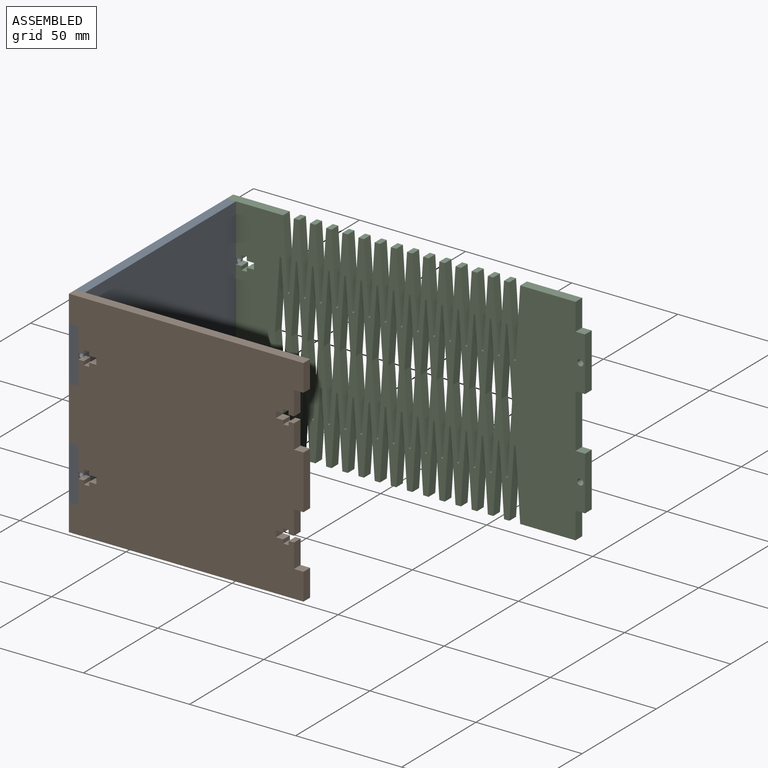
[diagram: assembled view]
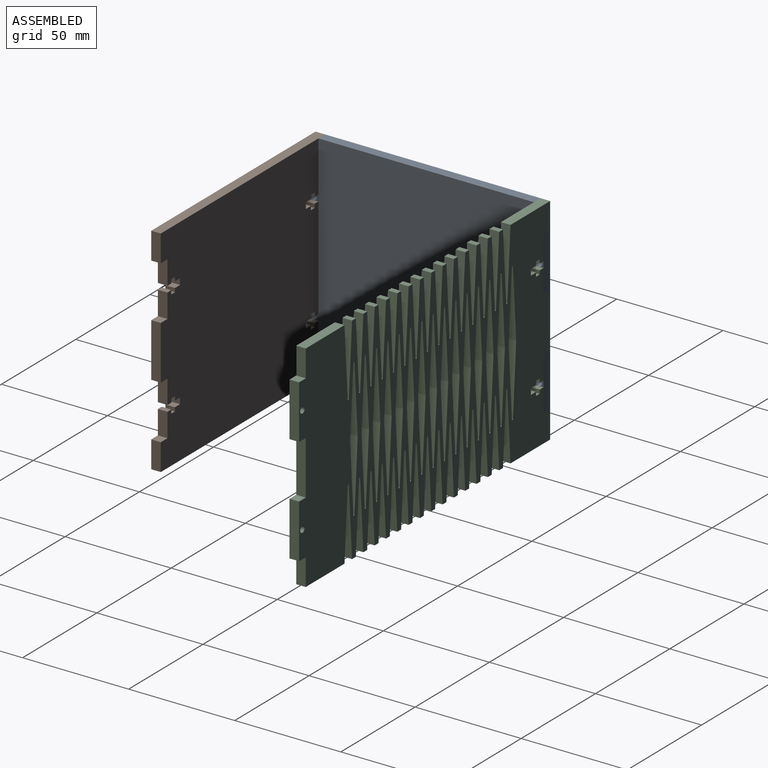
[diagram: assembled view, second angle]
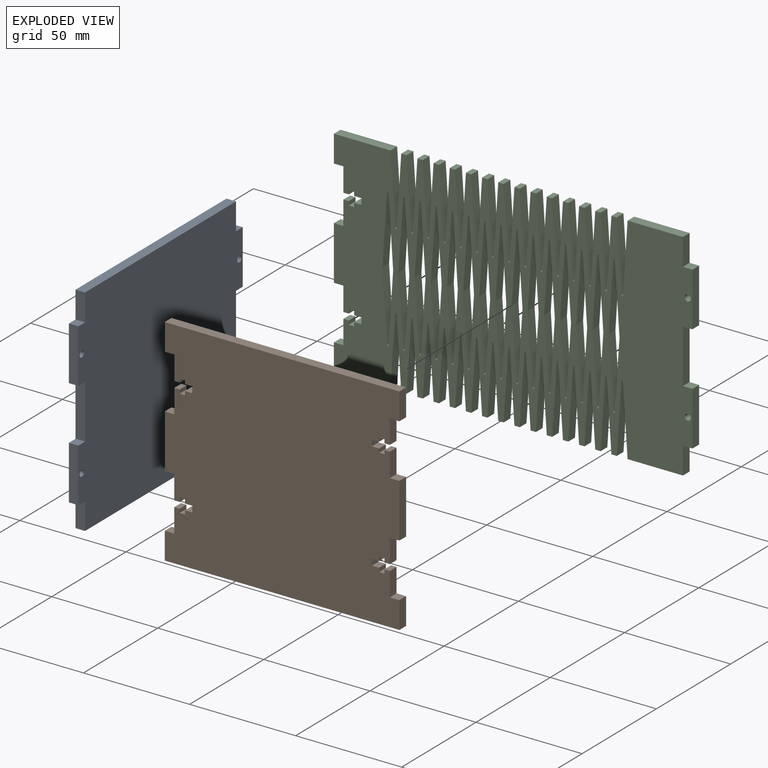
[diagram: exploded view]
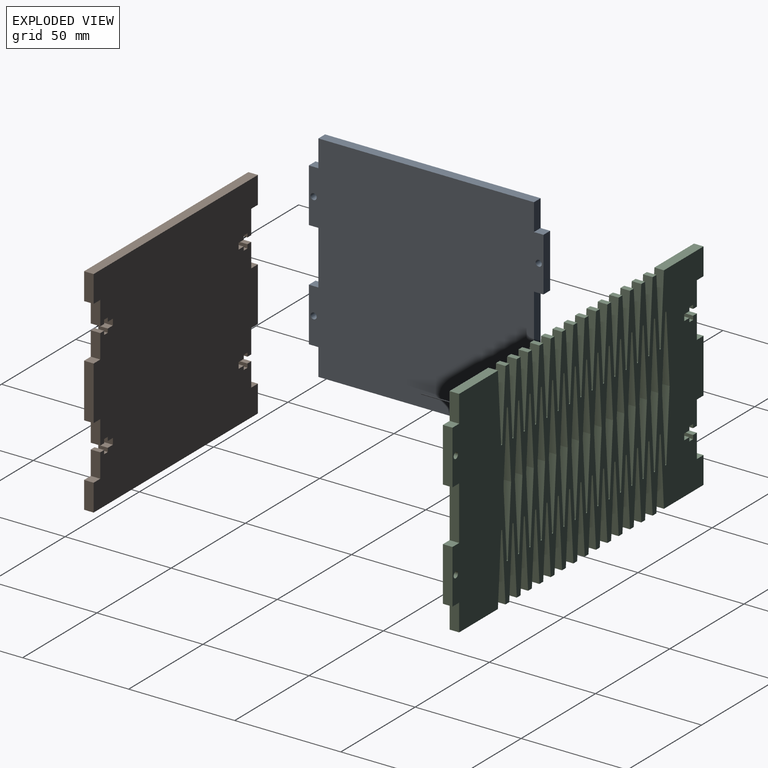
[diagram: exploded view, second angle]
ASSEMBLY  parts=3 mates=7
PART A: 26 faces, bbox 110.6x101.6x4.5 mm
  f0: plane 25.4x4.5mm, normal (-1,0,0), area 114.2mm2, adj f1,f22,f24,f25
  f1: plane 4.5x4.5mm, normal (0,1,0), area 20.2mm2, adj f0,f2,f24,f25
  f2: plane 25.4x4.5mm, normal (-1,0,0), area 114.2mm2, adj f1,f3,f24,f25
  f3: plane 4.5x4.5mm, normal (0,-1,0), area 20.2mm2, adj f2,f4,f24,f25
  f4: plane 12.7x4.5mm, normal (-1,0,0), area 57.1mm2, adj f3,f5,f24,f25
  f5: plane 101.6x4.5mm, normal (0,-1,0), area 456.8mm2, adj f4,f6,f24,f25
  f6: plane 12.7x4.5mm, normal (1,0,0), area 57.1mm2, adj f5,f7,f24,f25
  f7: plane 4.5x4.5mm, normal (0,-1,0), area 20.2mm2, adj f6,f8,f24,f25
  f8: plane 25.4x4.5mm, normal (1,0,0), area 114.2mm2, adj f7,f9,f24,f25
  f9: plane 4.5x4.5mm, normal (0,1,0), area 20.2mm2, adj f8,f10,f24,f25
  f10: plane 25.4x4.5mm, normal (1,0,0), area 114.2mm2, adj f9,f11,f24,f25
  f11: plane 4.5x4.5mm, normal (0,-1,0), area 20.2mm2, adj f10,f12,f24,f25
  f12: plane 25.4x4.5mm, normal (1,0,0), area 114.2mm2, adj f11,f13,f24,f25
  f13: plane 4.5x4.5mm, normal (0,1,0), area 20.2mm2, adj f12,f14,f24,f25
  f14: plane 12.7x4.5mm, normal (1,0,0), area 57.1mm2, adj f13,f15,f24,f25
  f15: plane 101.6x4.5mm, normal (0,1,0), area 456.8mm2, adj f14,f16,f24,f25
  f16: plane 12.7x4.5mm, normal (-1,0,0), area 57.1mm2, adj f15,f17,f24,f25
  f17: plane 4.5x4.5mm, normal (0,1,0), area 20.2mm2, adj f16,f18,f24,f25
  f18: plane 25.4x4.5mm, normal (-1,0,0), area 114.2mm2, adj f17,f22,f24,f25
  f19: cylinder r=1.45mm len=4.5mm, axis (0,0,-1), area 40.9mm2, adj f24,f25
  f20: cylinder r=1.45mm len=4.5mm, axis (0,0,-1), area 40.9mm2, adj f24,f25
  f21: cylinder r=1.45mm len=4.5mm, axis (0,0,-1), area 40.9mm2, adj f24,f25
  f22: plane 4.5x4.5mm, normal (0,-1,0), area 20.2mm2, adj f0,f18,f24,f25
  f23: cylinder r=1.45mm len=4.5mm, axis (0,0,-1), area 40.9mm2, adj f24,f25
  f24: plane 110.59x101.6mm, normal (0,0,1), area 10753mm2, adj f0,f1,f2,f3,f4,f5,f6,f7
  f25: plane 110.59x101.6mm, normal (0,0,-1), area 10753mm2, adj f0,f1,f2,f3,f4,f5,f6,f7
PART B: 70 faces, bbox 110.6x101.6x4.5 mm
  f0: plane 4.5x4.5mm, normal (0,-1,0), area 20.2mm2, adj f1,f67,f68,f69
  f1: plane 11.25x4.5mm, normal (-1,0,0), area 50.6mm2, adj f0,f2,f68,f69
  f2: plane 4.5x2.54mm, normal (0,-1,0), area 11.4mm2, adj f1,f3,f68,f69
  f3: plane 4.5x1.79mm, normal (1,0,0), area 8.1mm2, adj f2,f4,f68,f69
  f4: plane 4.5x2.51mm, normal (0,-1,0), area 11.3mm2, adj f3,f5,f68,f69
  f5: plane 4.5x1.79mm, normal (-1,0,0), area 8.1mm2, adj f4,f6,f68,f69
  f6: plane 4.5x3.41mm, normal (0,-1,0), area 15.3mm2, adj f5,f7,f68,f69
  f7: plane 4.5x2.9mm, normal (-1,0,0), area 13mm2, adj f6,f8,f68,f69
  f8: plane 4.5x3.41mm, normal (0,1,0), area 15.3mm2, adj f7,f9,f68,f69
  f9: plane 4.5x1.79mm, normal (-1,0,0), area 8.1mm2, adj f8,f10,f68,f69
  f10: plane 4.5x2.51mm, normal (0,1,0), area 11.3mm2, adj f9,f11,f68,f69
  f11: plane 4.5x1.79mm, normal (1,0,0), area 8.1mm2, adj f10,f12,f68,f69
  f12: plane 4.5x2.54mm, normal (0,1,0), area 11.4mm2, adj f11,f13,f68,f69
  f13: plane 11.25x4.5mm, normal (-1,0,0), area 50.6mm2, adj f12,f14,f68,f69
  f14: plane 4.5x4.5mm, normal (0,1,0), area 20.2mm2, adj f13,f15,f68,f69
  f15: plane 25.4x4.5mm, normal (-1,0,0), area 114.2mm2, adj f14,f16,f68,f69
  f16: plane 4.5x4.5mm, normal (0,-1,0), area 20.2mm2, adj f15,f17,f68,f69
  f17: plane 11.25x4.5mm, normal (-1,0,0), area 50.6mm2, adj f16,f18,f68,f69
  f18: plane 4.5x2.54mm, normal (0,-1,0), area 11.4mm2, adj f17,f19,f68,f69
  f19: plane 4.5x1.79mm, normal (1,0,0), area 8.1mm2, adj f18,f20,f68,f69
  f20: plane 4.5x2.51mm, normal (0,-1,0), area 11.3mm2, adj f19,f21,f68,f69
  f21: plane 4.5x1.79mm, normal (-1,0,0), area 8.1mm2, adj f20,f22,f68,f69
  f22: plane 4.5x3.41mm, normal (0,-1,0), area 15.3mm2, adj f21,f23,f68,f69
  f23: plane 4.5x2.9mm, normal (-1,0,0), area 13mm2, adj f22,f24,f68,f69
  f24: plane 4.5x3.41mm, normal (0,1,0), area 15.3mm2, adj f23,f25,f68,f69
  f25: plane 4.5x1.79mm, normal (-1,0,0), area 8.1mm2, adj f24,f26,f68,f69
  f26: plane 4.5x2.51mm, normal (0,1,0), area 11.3mm2, adj f25,f27,f68,f69
  f27: plane 4.5x1.79mm, normal (1,0,0), area 8.1mm2, adj f26,f28,f68,f69
  f28: plane 4.5x2.54mm, normal (0,1,0), area 11.4mm2, adj f27,f29,f68,f69
  f29: plane 11.25x4.5mm, normal (-1,0,0), area 50.6mm2, adj f28,f30,f68,f69
  f30: plane 4.5x4.5mm, normal (0,1,0), area 20.2mm2, adj f29,f31,f68,f69
  f31: plane 12.7x4.5mm, normal (-1,0,0), area 57.1mm2, adj f30,f32,f68,f69
  f32: plane 110.59x4.5mm, normal (0,-1,0), area 497.2mm2, adj f31,f33,f68,f69
  f33: plane 12.7x4.5mm, normal (1,0,0), area 57.1mm2, adj f32,f34,f68,f69
  f34: plane 4.5x4.5mm, normal (0,1,0), area 20.2mm2, adj f33,f35,f68,f69
  f35: plane 11.25x4.5mm, normal (1,0,0), area 50.6mm2, adj f34,f36,f68,f69
  f36: plane 4.5x2.54mm, normal (0,1,0), area 11.4mm2, adj f35,f37,f68,f69
  f37: plane 4.5x1.79mm, normal (-1,0,0), area 8.1mm2, adj f36,f38,f68,f69
  f38: plane 4.5x2.51mm, normal (0,1,0), area 11.3mm2, adj f37,f39,f68,f69
  f39: plane 4.5x1.79mm, normal (1,0,0), area 8.1mm2, adj f38,f40,f68,f69
  f40: plane 4.5x3.41mm, normal (0,1,0), area 15.3mm2, adj f39,f41,f68,f69
  f41: plane 4.5x2.9mm, normal (1,0,0), area 13mm2, adj f40,f42,f68,f69
  f42: plane 4.5x3.41mm, normal (0,-1,0), area 15.3mm2, adj f41,f43,f68,f69
  f43: plane 4.5x1.79mm, normal (1,0,0), area 8.1mm2, adj f42,f44,f68,f69
  f44: plane 4.5x2.51mm, normal (0,-1,0), area 11.3mm2, adj f43,f45,f68,f69
  f45: plane 4.5x1.79mm, normal (-1,0,0), area 8.1mm2, adj f44,f46,f68,f69
  f46: plane 4.5x2.54mm, normal (0,-1,0), area 11.4mm2, adj f45,f47,f68,f69
  f47: plane 11.25x4.5mm, normal (1,0,0), area 50.6mm2, adj f46,f48,f68,f69
  f48: plane 4.5x4.5mm, normal (0,-1,0), area 20.2mm2, adj f47,f49,f68,f69
  f49: plane 25.4x4.5mm, normal (1,0,0), area 114.2mm2, adj f48,f50,f68,f69
  f50: plane 4.5x4.5mm, normal (0,1,0), area 20.2mm2, adj f49,f51,f68,f69
  f51: plane 11.25x4.5mm, normal (1,0,0), area 50.6mm2, adj f50,f52,f68,f69
  f52: plane 4.5x2.54mm, normal (0,1,0), area 11.4mm2, adj f51,f53,f68,f69
  f53: plane 4.5x1.79mm, normal (-1,0,0), area 8.1mm2, adj f52,f54,f68,f69
  f54: plane 4.5x2.51mm, normal (0,1,0), area 11.3mm2, adj f53,f55,f68,f69
  f55: plane 4.5x1.79mm, normal (1,0,0), area 8.1mm2, adj f54,f56,f68,f69
  f56: plane 4.5x3.41mm, normal (0,1,0), area 15.3mm2, adj f55,f57,f68,f69
  f57: plane 4.5x2.9mm, normal (1,0,0), area 13mm2, adj f56,f58,f68,f69
  f58: plane 4.5x3.41mm, normal (0,-1,0), area 15.3mm2, adj f57,f59,f68,f69
  f59: plane 4.5x1.79mm, normal (1,0,0), area 8.1mm2, adj f58,f60,f68,f69
  f60: plane 4.5x2.51mm, normal (0,-1,0), area 11.3mm2, adj f59,f61,f68,f69
  f61: plane 4.5x1.79mm, normal (-1,0,0), area 8.1mm2, adj f60,f62,f68,f69
  f62: plane 4.5x2.54mm, normal (0,-1,0), area 11.4mm2, adj f61,f63,f68,f69
  f63: plane 11.25x4.5mm, normal (1,0,0), area 50.6mm2, adj f62,f64,f68,f69
  f64: plane 4.5x4.5mm, normal (0,-1,0), area 20.2mm2, adj f63,f65,f68,f69
  f65: plane 12.7x4.5mm, normal (1,0,0), area 57.1mm2, adj f64,f66,f68,f69
  f66: plane 110.59x4.5mm, normal (0,1,0), area 497.2mm2, adj f65,f67,f68,f69
  f67: plane 12.7x4.5mm, normal (-1,0,0), area 57.1mm2, adj f0,f66,f68,f69
  f68: plane 110.59x101.6mm, normal (0,0,1), area 10645.4mm2, adj f0,f1,f2,f3,f4,f5,f6,f7
  f69: plane 110.59x101.6mm, normal (0,0,-1), area 10645.4mm2, adj f0,f1,f2,f3,f4,f5,f6,f7
PART C: 258 faces, bbox 169x101.6x4.5 mm
  f0: plane 4.5x2.54mm, normal (0,-1,0), area 11.4mm2, adj f30,f31,f226,f240
  f1: plane 4.5x2.54mm, normal (0,-1,0), area 11.4mm2, adj f30,f31,f160,f231
  f2: plane 4.5x2.54mm, normal (0,-1,0), area 11.4mm2, adj f30,f31,f225,f232
  f3: plane 4.5x2.54mm, normal (0,-1,0), area 11.4mm2, adj f30,f31,f205,f216
  f4: plane 4.5x2.54mm, normal (0,-1,0), area 11.4mm2, adj f30,f31,f210,f217
  f5: plane 4.5x2.54mm, normal (0,-1,0), area 11.4mm2, adj f30,f31,f204,f241
  f6: plane 4.5x2.54mm, normal (0,-1,0), area 11.4mm2, adj f30,f31,f174,f186
  f7: plane 4.5x2.54mm, normal (0,-1,0), area 11.4mm2, adj f30,f31,f180,f187
  f8: plane 26.67x4.5mm, normal (0,-1,0), area 119.9mm2, adj f30,f31,f54,f176
  f9: plane 4.5x2.54mm, normal (0,-1,0), area 11.4mm2, adj f30,f31,f133,f159
  f10: plane 4.5x2.54mm, normal (0,-1,0), area 11.4mm2, adj f30,f31,f132,f181
  f11: plane 4.5x2.54mm, normal (0,-1,0), area 11.4mm2, adj f30,f31,f88,f123
  f12: plane 4.5x2.54mm, normal (0,-1,0), area 11.4mm2, adj f30,f31,f117,f124
  f13: plane 4.5x2.54mm, normal (0,-1,0), area 11.4mm2, adj f30,f31,f114,f211
  f14: plane 4.5x2.54mm, normal (0,-1,0), area 11.4mm2, adj f30,f31,f87,f115
  f15: plane 4.5x2.54mm, normal (0,1,0), area 11.4mm2, adj f30,f31,f209,f256
  f16: plane 4.5x2.54mm, normal (0,1,0), area 11.4mm2, adj f30,f31,f229,f257
  f17: plane 4.5x2.54mm, normal (0,1,0), area 11.4mm2, adj f30,f31,f101,f214
  f18: plane 4.5x2.54mm, normal (0,1,0), area 11.4mm2, adj f30,f31,f203,f208
  f19: plane 4.5x2.54mm, normal (0,1,0), area 11.4mm2, adj f30,f31,f202,f215
  f20: plane 4.5x2.54mm, normal (0,1,0), area 11.4mm2, adj f30,f31,f149,f184
  f21: plane 4.5x2.54mm, normal (0,1,0), area 11.4mm2, adj f30,f31,f173,f178
  f22: plane 4.5x2.54mm, normal (0,1,0), area 11.4mm2, adj f30,f31,f172,f185
  f23: plane 4.5x2.54mm, normal (0,1,0), area 11.4mm2, adj f30,f31,f158,f163
  f24: plane 4.5x2.54mm, normal (0,1,0), area 11.4mm2, adj f30,f31,f157,f230
  f25: plane 4.5x2.54mm, normal (0,1,0), area 11.4mm2, adj f30,f31,f148,f164
  f26: plane 26.09x4.5mm, normal (0,1,0), area 117.3mm2, adj f30,f31,f64,f121
  f27: plane 4.5x2.54mm, normal (0,1,0), area 11.4mm2, adj f30,f31,f86,f100
  f28: plane 4.5x2.54mm, normal (0,1,0), area 11.4mm2, adj f30,f31,f91,f122
  f29: plane 4.5x2.54mm, normal (0,1,0), area 11.4mm2, adj f30,f31,f85,f92
  f30: plane 169.01x101.6mm, normal (0,0,1), area 10945.8mm2, adj f0,f1,f2,f3,f4,f5,f6,f7
  f31: plane 169.01x101.6mm, normal (0,0,-1), area 10945.8mm2, adj f0,f1,f2,f3,f4,f5,f6,f7
  f32: plane 4.5x1.79mm, normal (-1,0,0), area 8.1mm2, adj f30,f31,f33,f77
  f33: plane 4.5x2.51mm, normal (0,1,0), area 11.3mm2, adj f30,f31,f32,f34
  f34: plane 4.5x1.79mm, normal (1,0,0), area 8.1mm2, adj f30,f31,f33,f35
  f35: plane 4.5x2.54mm, normal (0,1,0), area 11.4mm2, adj f30,f31,f34,f36
  f36: plane 11.25x4.5mm, normal (-1,0,0), area 50.6mm2, adj f30,f31,f35,f37
  f37: plane 4.5x4.5mm, normal (0,1,0), area 20.2mm2, adj f30,f31,f36,f38
  f38: plane 25.4x4.5mm, normal (-1,0,0), area 114.2mm2, adj f30,f31,f37,f39
  f39: plane 4.5x4.5mm, normal (0,-1,0), area 20.2mm2, adj f30,f31,f38,f40
  f40: plane 11.25x4.5mm, normal (-1,0,0), area 50.6mm2, adj f30,f31,f39,f41
  f41: plane 4.5x2.54mm, normal (0,-1,0), area 11.4mm2, adj f30,f31,f40,f42
  f42: plane 4.5x1.79mm, normal (1,0,0), area 8.1mm2, adj f30,f31,f41,f43
  f43: plane 4.5x2.51mm, normal (0,-1,0), area 11.3mm2, adj f30,f31,f42,f44
  f44: plane 4.5x1.79mm, normal (-1,0,0), area 8.1mm2, adj f30,f31,f43,f45
  f45: plane 4.5x3.41mm, normal (0,-1,0), area 15.3mm2, adj f30,f31,f44,f46
  f46: plane 4.5x2.9mm, normal (-1,0,0), area 13mm2, adj f30,f31,f45,f47
  f47: plane 4.5x3.41mm, normal (0,1,0), area 15.3mm2, adj f30,f31,f46,f48
  f48: plane 4.5x1.79mm, normal (-1,0,0), area 8.1mm2, adj f30,f31,f47,f49
  f49: plane 4.5x2.51mm, normal (0,1,0), area 11.3mm2, adj f30,f31,f48,f50
  f50: plane 4.5x1.79mm, normal (1,0,0), area 8.1mm2, adj f30,f31,f49,f51
  f51: plane 4.5x2.54mm, normal (0,1,0), area 11.4mm2, adj f30,f31,f50,f52
  f52: plane 11.25x4.5mm, normal (-1,0,0), area 50.6mm2, adj f30,f31,f51,f53
  f53: plane 4.5x4.5mm, normal (0,1,0), area 20.2mm2, adj f30,f31,f52,f54
  f54: plane 12.7x4.5mm, normal (-1,0,0), area 57.1mm2, adj f8,f30,f31,f53
  f55: plane 26.09x4.5mm, normal (0,-1,0), area 117.3mm2, adj f30,f31,f56,f118
  f56: plane 12.7x4.5mm, normal (1,0,0), area 57.1mm2, adj f30,f31,f55,f57
  f57: plane 4.5x4.5mm, normal (0,-1,0), area 20.2mm2, adj f30,f31,f56,f58
  f58: plane 25.4x4.5mm, normal (1,0,0), area 114.2mm2, adj f30,f31,f57,f59
  f59: plane 4.5x4.5mm, normal (0,1,0), area 20.2mm2, adj f30,f31,f58,f60
  f60: plane 25.4x4.5mm, normal (1,0,0), area 114.2mm2, adj f30,f31,f59,f61
  f61: plane 4.5x4.5mm, normal (0,-1,0), area 20.2mm2, adj f30,f31,f60,f62
  f62: plane 25.4x4.5mm, normal (1,0,0), area 114.2mm2, adj f30,f31,f61,f63
  f63: plane 4.5x4.5mm, normal (0,1,0), area 20.2mm2, adj f30,f31,f62,f64
  f64: plane 12.7x4.5mm, normal (1,0,0), area 57.1mm2, adj f26,f30,f31,f63
  f65: plane 26.67x4.5mm, normal (0,1,0), area 119.9mm2, adj f30,f31,f66,f179
  f66: plane 12.7x4.5mm, normal (-1,0,0), area 57.1mm2, adj f30,f31,f65,f67
  f67: plane 4.5x4.5mm, normal (0,-1,0), area 20.2mm2, adj f30,f31,f66,f68
  f68: plane 11.25x4.5mm, normal (-1,0,0), area 50.6mm2, adj f30,f31,f67,f69
  f69: plane 4.5x2.54mm, normal (0,-1,0), area 11.4mm2, adj f30,f31,f68,f70
  f70: plane 4.5x1.79mm, normal (1,0,0), area 8.1mm2, adj f30,f31,f69,f71
  f71: plane 4.5x2.51mm, normal (0,-1,0), area 11.3mm2, adj f30,f31,f70,f72
  f72: plane 4.5x1.79mm, normal (-1,0,0), area 8.1mm2, adj f30,f31,f71,f73
  f73: plane 4.5x3.41mm, normal (0,-1,0), area 15.3mm2, adj f30,f31,f72,f74
  f74: plane 4.5x2.9mm, normal (-1,0,0), area 13mm2, adj f30,f31,f73,f77
  f75: cylinder r=1.45mm len=4.5mm, axis (0,0,-1), area 40.9mm2, adj f30,f31
  f76: cylinder r=1.45mm len=4.5mm, axis (0,0,-1), area 40.9mm2, adj f30,f31
  f77: plane 4.5x3.41mm, normal (0,1,0), area 15.3mm2, adj f30,f31,f32,f74
  f78: plane 32.4x4.5mm, normal (-1,0.07,0), area 146mm2, adj f30,f31,f79,f83
  f79: plane 32.4x4.5mm, normal (-1,-0.07,0), area 146mm2, adj f30,f31,f78,f80
  f80: cylinder r=0.38mm len=4.5mm, axis (0,0,1), area 5.2mm2, adj f30,f31,f79,f81
  f81: plane 32.4x4.5mm, normal (1,-0.07,0), area 146mm2, adj f30,f31,f80,f82
  f82: plane 32.4x4.5mm, normal (1,0.07,0), area 146mm2, adj f30,f31,f81,f83
  f83: cylinder r=0.38mm len=4.5mm, axis (0,0,1), area 5.2mm2, adj f30,f31,f78,f82
  f84: cylinder r=0.38mm len=4.5mm, axis (0,0,1), area 5.2mm2, adj f30,f31,f85,f86
  f85: plane 32.4x4.5mm, normal (-1,0.07,0), area 146mm2, adj f29,f30,f31,f84
  f86: plane 32.4x4.5mm, normal (1,0.07,0), area 146mm2, adj f27,f30,f31,f84
  f87: plane 32.4x4.5mm, normal (1,-0.07,0), area 146mm2, adj f14,f30,f31,f89
  f88: plane 32.4x4.5mm, normal (-1,-0.07,0), area 146mm2, adj f11,f30,f31,f89
  f89: cylinder r=0.38mm len=4.5mm, axis (0,0,1), area 5.2mm2, adj f30,f31,f87,f88
  f90: cylinder r=0.38mm len=4.5mm, axis (0,0,1), area 5.2mm2, adj f30,f31,f91,f92
  f91: plane 32.4x4.5mm, normal (-1,0.07,0), area 146mm2, adj f28,f30,f31,f90
  f92: plane 32.4x4.5mm, normal (1,0.07,0), area 146mm2, adj f29,f30,f31,f90
  f93: plane 32.4x4.5mm, normal (-1,0.07,0), area 146mm2, adj f30,f31,f94,f98
  f94: plane 32.4x4.5mm, normal (-1,-0.07,0), area 146mm2, adj f30,f31,f93,f95
  f95: cylinder r=0.38mm len=4.5mm, axis (0,0,1), area 5.2mm2, adj f30,f31,f94,f96
  f96: plane 32.4x4.5mm, normal (1,-0.07,0), area 146mm2, adj f30,f31,f95,f97
  f97: plane 32.4x4.5mm, normal (1,0.07,0), area 146mm2, adj f30,f31,f96,f98
  f98: cylinder r=0.38mm len=4.5mm, axis (0,0,1), area 5.2mm2, adj f30,f31,f93,f97
  f99: cylinder r=0.38mm len=4.5mm, axis (0,0,1), area 5.2mm2, adj f30,f31,f100,f101
  f100: plane 32.4x4.5mm, normal (-1,0.07,0), area 146mm2, adj f27,f30,f31,f99
  f101: plane 32.4x4.5mm, normal (1,0.07,0), area 146mm2, adj f17,f30,f31,f99
  f102: plane 32.4x4.5mm, normal (-1,0.07,0), area 146mm2, adj f30,f31,f103,f107
  f103: plane 32.4x4.5mm, normal (-1,-0.07,0), area 146mm2, adj f30,f31,f102,f104
  f104: cylinder r=0.38mm len=4.5mm, axis (0,0,1), area 5.2mm2, adj f30,f31,f103,f105
  f105: plane 32.4x4.5mm, normal (1,-0.07,0), area 146mm2, adj f30,f31,f104,f106
  f106: plane 32.4x4.5mm, normal (1,0.07,0), area 146mm2, adj f30,f31,f105,f107
  f107: cylinder r=0.38mm len=4.5mm, axis (0,0,1), area 5.2mm2, adj f30,f31,f102,f106
  f108: plane 32.4x4.5mm, normal (-1,0.07,0), area 146mm2, adj f30,f31,f109,f113
  f109: plane 32.4x4.5mm, normal (-1,-0.07,0), area 146mm2, adj f30,f31,f108,f110
  f110: cylinder r=0.38mm len=4.5mm, axis (0,0,1), area 5.2mm2, adj f30,f31,f109,f111
  f111: plane 32.4x4.5mm, normal (1,-0.07,0), area 146mm2, adj f30,f31,f110,f112
  f112: plane 32.4x4.5mm, normal (1,0.07,0), area 146mm2, adj f30,f31,f111,f113
  f113: cylinder r=0.38mm len=4.5mm, axis (0,0,1), area 5.2mm2, adj f30,f31,f108,f112
  f114: plane 32.4x4.5mm, normal (1,-0.07,0), area 146mm2, adj f13,f30,f31,f116
  f115: plane 32.4x4.5mm, normal (-1,-0.07,0), area 146mm2, adj f14,f30,f31,f116
  f116: cylinder r=0.38mm len=4.5mm, axis (0,0,1), area 5.2mm2, adj f30,f31,f114,f115
  f117: plane 32.4x4.5mm, normal (1,-0.07,0), area 146mm2, adj f12,f30,f31,f119
  f118: plane 32.4x4.5mm, normal (-1,-0.07,0), area 146mm2, adj f30,f31,f55,f119
  f119: cylinder r=0.38mm len=4.5mm, axis (0,0,1), area 5.2mm2, adj f30,f31,f117,f118
  f120: cylinder r=0.38mm len=4.5mm, axis (0,0,1), area 5.2mm2, adj f30,f31,f121,f122
  f121: plane 32.4x4.5mm, normal (-1,0.07,0), area 146mm2, adj f26,f30,f31,f120
  f122: plane 32.4x4.5mm, normal (1,0.07,0), area 146mm2, adj f28,f30,f31,f120
  f123: plane 32.4x4.5mm, normal (1,-0.07,0), area 146mm2, adj f11,f30,f31,f125
  f124: plane 32.4x4.5mm, normal (-1,-0.07,0), area 146mm2, adj f12,f30,f31,f125
  f125: cylinder r=0.38mm len=4.5mm, axis (0,0,1), area 5.2mm2, adj f30,f31,f123,f124
  f126: plane 32.4x4.5mm, normal (-1,0.07,0), area 146mm2, adj f30,f31,f127,f131
  f127: plane 32.4x4.5mm, normal (-1,-0.07,0), area 146mm2, adj f30,f31,f126,f128
  f128: cylinder r=0.38mm len=4.5mm, axis (0,0,1), area 5.2mm2, adj f30,f31,f127,f129
  f129: plane 32.4x4.5mm, normal (1,-0.07,0), area 146mm2, adj f30,f31,f128,f130
  f130: plane 32.4x4.5mm, normal (1,0.07,0), area 146mm2, adj f30,f31,f129,f131
  f131: cylinder r=0.38mm len=4.5mm, axis (0,0,1), area 5.2mm2, adj f30,f31,f126,f130
  f132: plane 32.4x4.5mm, normal (1,-0.07,0), area 146mm2, adj f10,f30,f31,f134
  f133: plane 32.4x4.5mm, normal (-1,-0.07,0), area 146mm2, adj f9,f30,f31,f134
  f134: cylinder r=0.38mm len=4.5mm, axis (0,0,1), area 5.2mm2, adj f30,f31,f132,f133
  f135: plane 32.4x4.5mm, normal (-1,0.07,0), area 146mm2, adj f30,f31,f136,f140
  f136: plane 32.4x4.5mm, normal (-1,-0.07,0), area 146mm2, adj f30,f31,f135,f137
  f137: cylinder r=0.38mm len=4.5mm, axis (0,0,1), area 5.2mm2, adj f30,f31,f136,f138
  f138: plane 32.4x4.5mm, normal (1,-0.07,0), area 146mm2, adj f30,f31,f137,f139
  f139: plane 32.4x4.5mm, normal (1,0.07,0), area 146mm2, adj f30,f31,f138,f140
  f140: cylinder r=0.38mm len=4.5mm, axis (0,0,1), area 5.2mm2, adj f30,f31,f135,f139
  f141: plane 32.4x4.5mm, normal (-1,0.07,0), area 146mm2, adj f30,f31,f142,f146
  f142: plane 32.4x4.5mm, normal (-1,-0.07,0), area 146mm2, adj f30,f31,f141,f143
  f143: cylinder r=0.38mm len=4.5mm, axis (0,0,1), area 5.2mm2, adj f30,f31,f142,f144
  f144: plane 32.4x4.5mm, normal (1,-0.07,0), area 146mm2, adj f30,f31,f143,f145
  f145: plane 32.4x4.5mm, normal (1,0.07,0), area 146mm2, adj f30,f31,f144,f146
  f146: cylinder r=0.38mm len=4.5mm, axis (0,0,1), area 5.2mm2, adj f30,f31,f141,f145
  f147: cylinder r=0.38mm len=4.5mm, axis (0,0,1), area 5.2mm2, adj f30,f31,f148,f149
  f148: plane 32.4x4.5mm, normal (-1,0.07,0), area 146mm2, adj f25,f30,f31,f147
  f149: plane 32.4x4.5mm, normal (1,0.07,0), area 146mm2, adj f20,f30,f31,f147
  f150: plane 32.4x4.5mm, normal (-1,0.07,0), area 146mm2, adj f30,f31,f151,f155
  f151: plane 32.4x4.5mm, normal (-1,-0.07,0), area 146mm2, adj f30,f31,f150,f152
  f152: cylinder r=0.38mm len=4.5mm, axis (0,0,1), area 5.2mm2, adj f30,f31,f151,f153
  f153: plane 32.4x4.5mm, normal (1,-0.07,0), area 146mm2, adj f30,f31,f152,f154
  f154: plane 32.4x4.5mm, normal (1,0.07,0), area 146mm2, adj f30,f31,f153,f155
  f155: cylinder r=0.38mm len=4.5mm, axis (0,0,1), area 5.2mm2, adj f30,f31,f150,f154
  f156: cylinder r=0.38mm len=4.5mm, axis (0,0,1), area 5.2mm2, adj f30,f31,f157,f158
  f157: plane 32.4x4.5mm, normal (-1,0.07,0), area 146mm2, adj f24,f30,f31,f156
  f158: plane 32.4x4.5mm, normal (1,0.07,0), area 146mm2, adj f23,f30,f31,f156
  f159: plane 32.4x4.5mm, normal (1,-0.07,0), area 146mm2, adj f9,f30,f31,f161
  f160: plane 32.4x4.5mm, normal (-1,-0.07,0), area 146mm2, adj f1,f30,f31,f161
  f161: cylinder r=0.38mm len=4.5mm, axis (0,0,1), area 5.2mm2, adj f30,f31,f159,f160
  f162: cylinder r=0.38mm len=4.5mm, axis (0,0,1), area 5.2mm2, adj f30,f31,f163,f164
  f163: plane 32.4x4.5mm, normal (-1,0.07,0), area 146mm2, adj f23,f30,f31,f162
  f164: plane 32.4x4.5mm, normal (1,0.07,0), area 146mm2, adj f25,f30,f31,f162
  f165: plane 32.4x4.5mm, normal (-1,0.07,0), area 146mm2, adj f30,f31,f166,f170
  f166: plane 32.4x4.5mm, normal (-1,-0.07,0), area 146mm2, adj f30,f31,f165,f167
  f167: cylinder r=0.38mm len=4.5mm, axis (0,0,1), area 5.2mm2, adj f30,f31,f166,f168
  f168: plane 32.4x4.5mm, normal (1,-0.07,0), area 146mm2, adj f30,f31,f167,f169
  f169: plane 32.4x4.5mm, normal (1,0.07,0), area 146mm2, adj f30,f31,f168,f170
  f170: cylinder r=0.38mm len=4.5mm, axis (0,0,1), area 5.2mm2, adj f30,f31,f165,f169
  f171: cylinder r=0.38mm len=4.5mm, axis (0,0,1), area 5.2mm2, adj f30,f31,f172,f173
  f172: plane 32.4x4.5mm, normal (-1,0.07,0), area 146mm2, adj f22,f30,f31,f171
  f173: plane 32.4x4.5mm, normal (1,0.07,0), area 146mm2, adj f21,f30,f31,f171
  f174: plane 32.4x4.5mm, normal (-1,-0.07,0), area 146mm2, adj f6,f30,f31,f175
  f175: cylinder r=0.38mm len=4.5mm, axis (0,0,1), area 5.2mm2, adj f30,f31,f174,f176
  f176: plane 32.4x4.5mm, normal (1,-0.07,0), area 146mm2, adj f8,f30,f31,f175
  f177: cylinder r=0.38mm len=4.5mm, axis (0,0,1), area 5.2mm2, adj f30,f31,f178,f179
  f178: plane 32.4x4.5mm, normal (-1,0.07,0), area 146mm2, adj f21,f30,f31,f177
  f179: plane 32.4x4.5mm, normal (1,0.07,0), area 146mm2, adj f30,f31,f65,f177
  f180: plane 32.4x4.5mm, normal (1,-0.07,0), area 146mm2, adj f7,f30,f31,f182
  f181: plane 32.4x4.5mm, normal (-1,-0.07,0), area 146mm2, adj f10,f30,f31,f182
  f182: cylinder r=0.38mm len=4.5mm, axis (0,0,1), area 5.2mm2, adj f30,f31,f180,f181
  f183: cylinder r=0.38mm len=4.5mm, axis (0,0,1), area 5.2mm2, adj f30,f31,f184,f185
  f184: plane 32.4x4.5mm, normal (-1,0.07,0), area 146mm2, adj f20,f30,f31,f183
  f185: plane 32.4x4.5mm, normal (1,0.07,0), area 146mm2, adj f22,f30,f31,f183
  f186: plane 32.4x4.5mm, normal (1,-0.07,0), area 146mm2, adj f6,f30,f31,f188
  f187: plane 32.4x4.5mm, normal (-1,-0.07,0), area 146mm2, adj f7,f30,f31,f188
  f188: cylinder r=0.38mm len=4.5mm, axis (0,0,1), area 5.2mm2, adj f30,f31,f186,f187
  f189: plane 32.4x4.5mm, normal (-1,0.07,0), area 146mm2, adj f30,f31,f190,f194
  f190: plane 32.4x4.5mm, normal (-1,-0.07,0), area 146mm2, adj f30,f31,f189,f191
  f191: cylinder r=0.38mm len=4.5mm, axis (0,0,1), area 5.2mm2, adj f30,f31,f190,f192
  f192: plane 32.4x4.5mm, normal (1,-0.07,0), area 146mm2, adj f30,f31,f191,f193
  f193: plane 32.4x4.5mm, normal (1,0.07,0), area 146mm2, adj f30,f31,f192,f194
  f194: cylinder r=0.38mm len=4.5mm, axis (0,0,1), area 5.2mm2, adj f30,f31,f189,f193
  f195: plane 32.4x4.5mm, normal (-1,0.07,0), area 146mm2, adj f30,f31,f196,f200
  f196: plane 32.4x4.5mm, normal (-1,-0.07,0), area 146mm2, adj f30,f31,f195,f197
  f197: cylinder r=0.38mm len=4.5mm, axis (0,0,1), area 5.2mm2, adj f30,f31,f196,f198
  f198: plane 32.4x4.5mm, normal (1,-0.07,0), area 146mm2, adj f30,f31,f197,f199
  f199: plane 32.4x4.5mm, normal (1,0.07,0), area 146mm2, adj f30,f31,f198,f200
  f200: cylinder r=0.38mm len=4.5mm, axis (0,0,1), area 5.2mm2, adj f30,f31,f195,f199
  f201: cylinder r=0.38mm len=4.5mm, axis (0,0,1), area 5.2mm2, adj f30,f31,f202,f203
  f202: plane 32.4x4.5mm, normal (-1,0.07,0), area 146mm2, adj f19,f30,f31,f201
  f203: plane 32.4x4.5mm, normal (1,0.07,0), area 146mm2, adj f18,f30,f31,f201
  f204: plane 32.4x4.5mm, normal (1,-0.07,0), area 146mm2, adj f5,f30,f31,f206
  f205: plane 32.4x4.5mm, normal (-1,-0.07,0), area 146mm2, adj f3,f30,f31,f206
  f206: cylinder r=0.38mm len=4.5mm, axis (0,0,1), area 5.2mm2, adj f30,f31,f204,f205
  f207: cylinder r=0.38mm len=4.5mm, axis (0,0,1), area 5.2mm2, adj f30,f31,f208,f209
  f208: plane 32.4x4.5mm, normal (-1,0.07,0), area 146mm2, adj f18,f30,f31,f207
  f209: plane 32.4x4.5mm, normal (1,0.07,0), area 146mm2, adj f15,f30,f31,f207
  f210: plane 32.4x4.5mm, normal (1,-0.07,0), area 146mm2, adj f4,f30,f31,f212
  f211: plane 32.4x4.5mm, normal (-1,-0.07,0), area 146mm2, adj f13,f30,f31,f212
  f212: cylinder r=0.38mm len=4.5mm, axis (0,0,1), area 5.2mm2, adj f30,f31,f210,f211
  f213: cylinder r=0.38mm len=4.5mm, axis (0,0,1), area 5.2mm2, adj f30,f31,f214,f215
  f214: plane 32.4x4.5mm, normal (-1,0.07,0), area 146mm2, adj f17,f30,f31,f213
  f215: plane 32.4x4.5mm, normal (1,0.07,0), area 146mm2, adj f19,f30,f31,f213
  f216: plane 32.4x4.5mm, normal (1,-0.07,0), area 146mm2, adj f3,f30,f31,f218
  f217: plane 32.4x4.5mm, normal (-1,-0.07,0), area 146mm2, adj f4,f30,f31,f218
  f218: cylinder r=0.38mm len=4.5mm, axis (0,0,1), area 5.2mm2, adj f30,f31,f216,f217
  f219: plane 32.4x4.5mm, normal (-1,0.07,0), area 146mm2, adj f30,f31,f220,f224
  f220: plane 32.4x4.5mm, normal (-1,-0.07,0), area 146mm2, adj f30,f31,f219,f221
  f221: cylinder r=0.38mm len=4.5mm, axis (0,0,1), area 5.2mm2, adj f30,f31,f220,f222
  f222: plane 32.4x4.5mm, normal (1,-0.07,0), area 146mm2, adj f30,f31,f221,f223
  f223: plane 32.4x4.5mm, normal (1,0.07,0), area 146mm2, adj f30,f31,f222,f224
  f224: cylinder r=0.38mm len=4.5mm, axis (0,0,1), area 5.2mm2, adj f30,f31,f219,f223
  f225: plane 32.4x4.5mm, normal (1,-0.07,0), area 146mm2, adj f2,f30,f31,f227
  f226: plane 32.4x4.5mm, normal (-1,-0.07,0), area 146mm2, adj f0,f30,f31,f227
  f227: cylinder r=0.38mm len=4.5mm, axis (0,0,1), area 5.2mm2, adj f30,f31,f225,f226
  f228: cylinder r=0.38mm len=4.5mm, axis (0,0,1), area 5.2mm2, adj f30,f31,f229,f230
  f229: plane 32.4x4.5mm, normal (-1,0.07,0), area 146mm2, adj f16,f30,f31,f228
  f230: plane 32.4x4.5mm, normal (1,0.07,0), area 146mm2, adj f24,f30,f31,f228
  f231: plane 32.4x4.5mm, normal (1,-0.07,0), area 146mm2, adj f1,f30,f31,f233
  f232: plane 32.4x4.5mm, normal (-1,-0.07,0), area 146mm2, adj f2,f30,f31,f233
  f233: cylinder r=0.38mm len=4.5mm, axis (0,0,1), area 5.2mm2, adj f30,f31,f231,f232
  f234: plane 32.4x4.5mm, normal (-1,0.07,0), area 146mm2, adj f30,f31,f235,f239
  f235: plane 32.4x4.5mm, normal (-1,-0.07,0), area 146mm2, adj f30,f31,f234,f236
  f236: cylinder r=0.38mm len=4.5mm, axis (0,0,1), area 5.2mm2, adj f30,f31,f235,f237
  f237: plane 32.4x4.5mm, normal (1,-0.07,0), area 146mm2, adj f30,f31,f236,f238
  f238: plane 32.4x4.5mm, normal (1,0.07,0), area 146mm2, adj f30,f31,f237,f239
  f239: cylinder r=0.38mm len=4.5mm, axis (0,0,1), area 5.2mm2, adj f30,f31,f234,f238
  f240: plane 32.4x4.5mm, normal (1,-0.07,0), area 146mm2, adj f0,f30,f31,f242
  f241: plane 32.4x4.5mm, normal (-1,-0.07,0), area 146mm2, adj f5,f30,f31,f242
  f242: cylinder r=0.38mm len=4.5mm, axis (0,0,1), area 5.2mm2, adj f30,f31,f240,f241
  f243: plane 32.4x4.5mm, normal (-1,0.07,0), area 146mm2, adj f30,f31,f244,f248
  f244: plane 32.4x4.5mm, normal (-1,-0.07,0), area 146mm2, adj f30,f31,f243,f245
  f245: cylinder r=0.38mm len=4.5mm, axis (0,0,1), area 5.2mm2, adj f30,f31,f244,f246
  f246: plane 32.4x4.5mm, normal (1,-0.07,0), area 146mm2, adj f30,f31,f245,f247
  f247: plane 32.4x4.5mm, normal (1,0.07,0), area 146mm2, adj f30,f31,f246,f248
  f248: cylinder r=0.38mm len=4.5mm, axis (0,0,1), area 5.2mm2, adj f30,f31,f243,f247
  f249: plane 32.4x4.5mm, normal (-1,0.07,0), area 146mm2, adj f30,f31,f250,f254
  f250: plane 32.4x4.5mm, normal (-1,-0.07,0), area 146mm2, adj f30,f31,f249,f251
  f251: cylinder r=0.38mm len=4.5mm, axis (0,0,1), area 5.2mm2, adj f30,f31,f250,f252
  f252: plane 32.4x4.5mm, normal (1,-0.07,0), area 146mm2, adj f30,f31,f251,f253
  f253: plane 32.4x4.5mm, normal (1,0.07,0), area 146mm2, adj f30,f31,f252,f254
  f254: cylinder r=0.38mm len=4.5mm, axis (0,0,1), area 5.2mm2, adj f30,f31,f249,f253
  f255: cylinder r=0.38mm len=4.5mm, axis (0,0,1), area 5.2mm2, adj f30,f31,f256,f257
  f256: plane 32.4x4.5mm, normal (-1,0.07,0), area 146mm2, adj f15,f30,f31,f255
  f257: plane 32.4x4.5mm, normal (1,0.07,0), area 146mm2, adj f16,f30,f31,f255
PLACE A rot(axis=(-0.58,-0.58,0.58),120deg) t=(-169.68,-98.6,-77.4)mm
PLACE B rot(axis=(-1,0,0),90deg) t=(-118.88,-153.89,-77.4)mm
PLACE C rot(axis=(-1,0,0),90deg) t=(-89.67,-47.8,-77.4)mm
MATE planar C.f30 <-> A.f12  axis (0,1,0) through (-87.3,-43.3,-77.4)mm
MATE parallel B.f15 <-> A.f24  axis (-1,0,0) through (-174.18,-151.64,-77.4)mm
MATE parallel A.f18 <-> B.f69  axis (0,-1,0) through (-171.93,-153.89,-102.8)mm
MATE planar A.f15 <-> B.f66  axis (0,0,-1) through (-169.68,-149.4,-128.2)mm
MATE planar C.f55 <-> A.f5  axis (0,0,1) through (-22.7,-45.55,-26.6)mm
MATE planar A.f24 <-> C.f38  axis (-1,0,0) through (-174.18,-98.6,-77.4)mm
MATE slider A.f17 <-> B.f0  axis (0,0,-1) through (-171.93,-151.64,-115.5)mm
